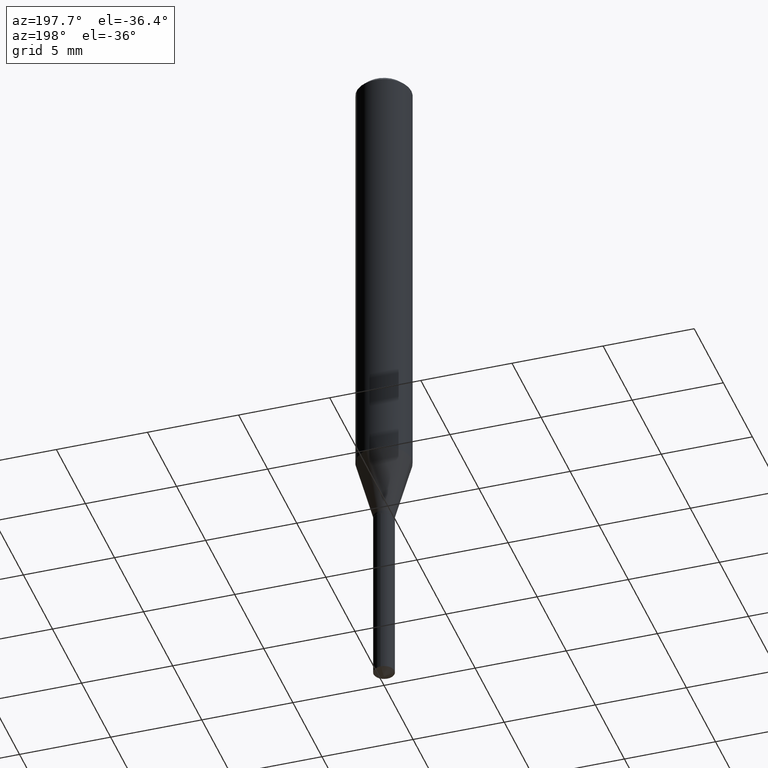
[diagram: clean part render]
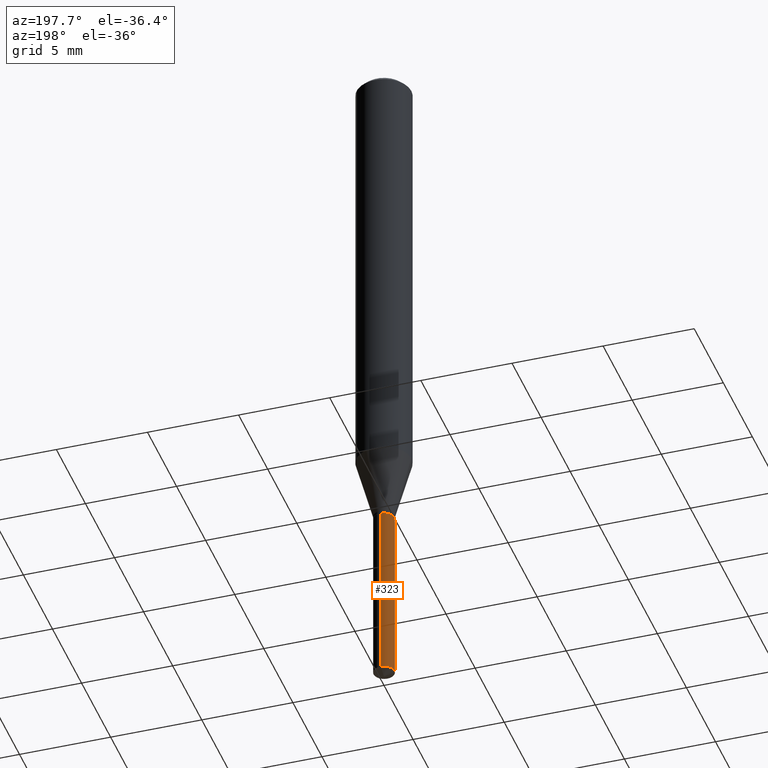
[diagram: same view with one face highlighted and labeled with its STEP entity id]
A machine part, auxiliary view. The second image highlights one B-rep face of the part: STEP entity #323.
In plain terms, the highlighted cylindrical surface (edge-blend (fillet) strip) has radius 0.5702 mm, axis along (-0, 0, 1).
Its self-contained STEP definition (entity closure, byte-faithful):
#9 = AXIS2_PLACEMENT_3D ( 'NONE', #119, #436, #58 ) ;
#58 = DIRECTION ( 'NONE',  ( -6.982962677686266711E-15, -1.000000000000000000, 0.000000000000000000 ) ) ;
#69 = CIRCLE ( 'NONE', #9, 0.02245000000000000120 ) ;
#83 = VERTEX_POINT ( 'NONE', #168 ) ;
#98 = FACE_OUTER_BOUND ( 'NONE', #229, .T. ) ;
#119 = CARTESIAN_POINT ( 'NONE',  ( 3.633065780117101996E-29, -5.187053496449942031E-15, -1.485631393074420270 ) ) ;
#120 = DIRECTION ( 'NONE',  ( -2.445470214571802116E-29, 3.491479321953280158E-15, 1.000000000000000000 ) ) ;
#122 = VERTEX_POINT ( 'NONE', #320 ) ;
#140 = AXIS2_PLACEMENT_3D ( 'NONE', #402, #120, #206 ) ;
#145 = EDGE_CURVE ( 'NONE', #483, #362, #278, .T. ) ;
#153 = DIRECTION ( 'NONE',  ( -6.982962677686266711E-15, -1.000000000000000000, 6.084293972526198645E-15 ) ) ;
#168 = CARTESIAN_POINT ( 'NONE',  ( -1.567675121140203782E-16, -0.02245000000000519150, -1.485631393074420270 ) ) ;
#169 = DIRECTION ( 'NONE',  ( -2.445470214571802396E-29, 3.491479321953280158E-15, 1.000000000000000000 ) ) ;
#190 = AXIS2_PLACEMENT_3D ( 'NONE', #191, #275, #153 ) ;
#191 = CARTESIAN_POINT ( 'NONE',  ( 2.676565608369631794E-29, -3.821426325363822773E-15, -1.094499999999999806 ) ) ;
#195 = ORIENTED_EDGE ( 'NONE', *, *, #227, .T. ) ;
#206 = DIRECTION ( 'NONE',  ( -6.982962677686266711E-15, -1.000000000000000000, 6.084293972526198645E-15 ) ) ;
#214 = CIRCLE ( 'NONE', #190, 0.02245000000000000120 ) ;
#227 = EDGE_CURVE ( 'NONE', #83, #122, #239, .T. ) ;
#229 = EDGE_LOOP ( 'NONE', ( #384, #281, #195, #266 ) ) ;
#239 = LINE ( 'NONE', #395, #419 ) ;
#244 = CYLINDRICAL_SURFACE ( 'NONE', #140, 0.02245000000000000120 ) ;
#266 = ORIENTED_EDGE ( 'NONE', *, *, #482, .F. ) ;
#275 = DIRECTION ( 'NONE',  ( -2.445470214571802116E-29, 3.491479321953280158E-15, 1.000000000000000000 ) ) ;
#278 = LINE ( 'NONE', #343, #330 ) ;
#281 = ORIENTED_EDGE ( 'NONE', *, *, #489, .T. ) ;
#320 = CARTESIAN_POINT ( 'NONE',  ( -1.567675121140299184E-16, -0.02245000000000382107, -1.094499999999999806 ) ) ;
#323 = ADVANCED_FACE ( 'NONE', ( #98 ), #244, .T. ) ;
#330 = VECTOR ( 'NONE', #386, 39.37007874015748143 ) ;
#340 = CARTESIAN_POINT ( 'NONE',  ( 1.595168441781788125E-16, 0.02244999999999481438, -1.485631393074420270 ) ) ;
#343 = CARTESIAN_POINT ( 'NONE',  ( 1.595168441781692230E-16, 0.02244999999999618134, -1.094500000000000028 ) ) ;
#362 = VERTEX_POINT ( 'NONE', #490 ) ;
#384 = ORIENTED_EDGE ( 'NONE', *, *, #145, .F. ) ;
#386 = DIRECTION ( 'NONE',  ( -2.445470214571802396E-29, 3.491479321953280158E-15, 1.000000000000000000 ) ) ;
#395 = CARTESIAN_POINT ( 'NONE',  ( -1.567675121140299184E-16, -0.02245000000000382107, -1.094499999999999806 ) ) ;
#402 = CARTESIAN_POINT ( 'NONE',  ( 2.676565608369631794E-29, -3.821426325363822773E-15, -1.094499999999999806 ) ) ;
#419 = VECTOR ( 'NONE', #169, 39.37007874015748143 ) ;
#436 = DIRECTION ( 'NONE',  ( -2.445470214571802116E-29, 3.491479321953280158E-15, 1.000000000000000000 ) ) ;
#482 = EDGE_CURVE ( 'NONE', #362, #122, #214, .T. ) ;
#483 = VERTEX_POINT ( 'NONE', #340 ) ;
#489 = EDGE_CURVE ( 'NONE', #483, #83, #69, .T. ) ;
#490 = CARTESIAN_POINT ( 'NONE',  ( 1.595168441781788618E-16, 0.02244999999999618134, -1.094500000000000028 ) ) ;